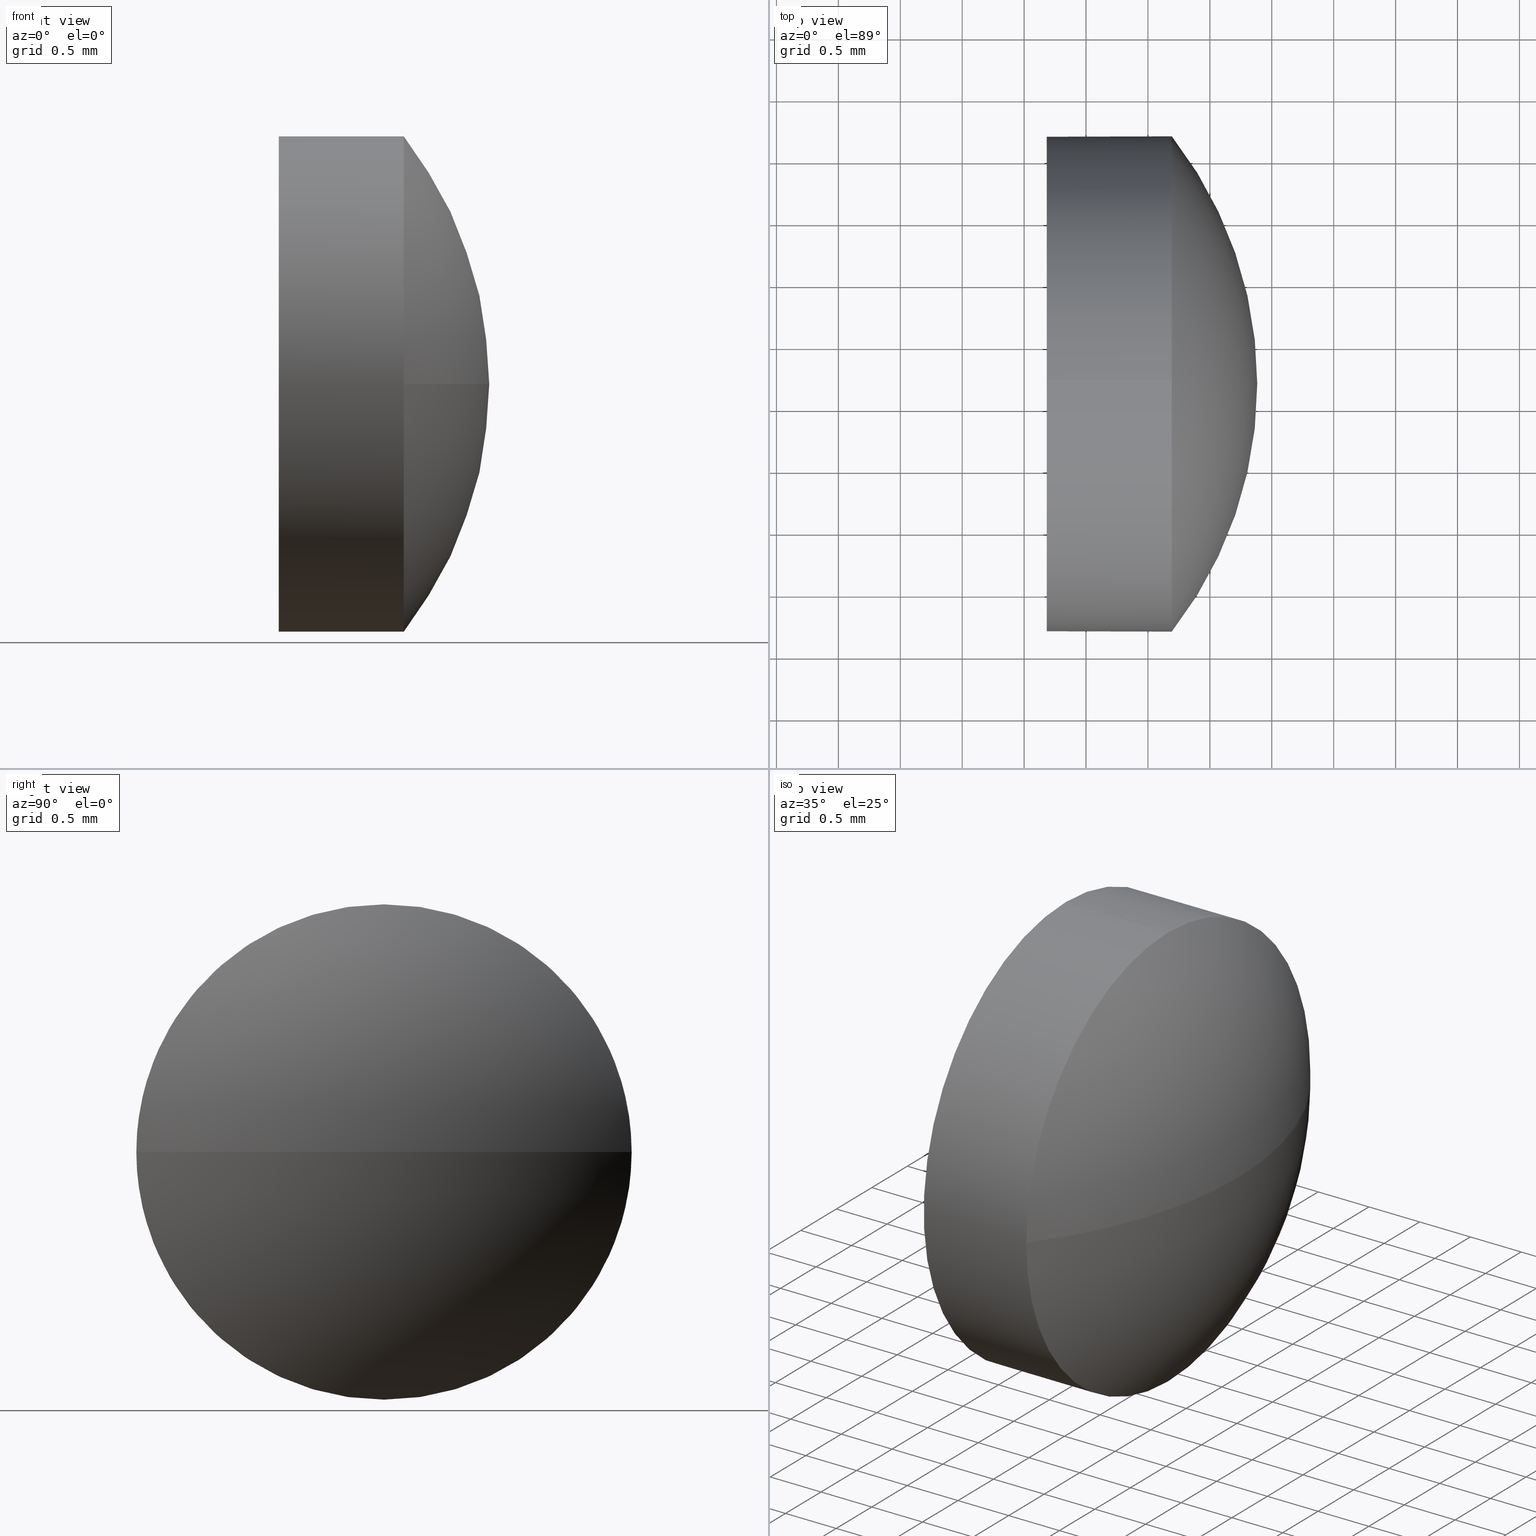
[diagram: canonical four-view strip — front | top / right | iso, engineering-drawing reading convention]
A machine part, canonical four-view strip (front | top / right | iso — engineering-drawing reading convention). The complete STEP part file that produces these views, byte-faithful:
ISO-10303-21;
HEADER;
FILE_DESCRIPTION (( 'STEP AP214' ),
    '1' );
FILE_NAME ('100089.STEP',
    '2019-05-13T03:08:41',
    ( '' ),
    ( '' ),
    'SwSTEP 2.0',
    'SolidWorks 2016',
    '' );
FILE_SCHEMA (( 'AUTOMOTIVE_DESIGN' ));
ENDSEC;

DATA;
#1 = LINE ( 'NONE', #116, #63 ) ;
#2 = SPHERICAL_SURFACE ( 'NONE', #164, 3.243550724637656900 ) ;
#3 = ORIENTED_EDGE ( 'NONE', *, *, #127, .F. ) ;
#4 = AXIS2_PLACEMENT_3D ( 'NONE', #95, #137, #51 ) ;
#5 = CARTESIAN_POINT ( 'NONE',  ( 388.6927272250636600, 21.68539423568211400, 1.999999999999998200 ) ) ;
#6 = CIRCLE ( 'NONE', #174, 1.999999999999998200 ) ;
#7 = CARTESIAN_POINT ( 'NONE',  ( 388.6927272250636600, 19.68539423568211400, 0.0000000000000000000 ) ) ;
#8 = DIRECTION ( 'NONE',  ( 0.0000000000000000000, -1.000000000000000000, 0.0000000000000000000 ) ) ;
#9 =( LENGTH_UNIT ( ) NAMED_UNIT ( * ) SI_UNIT ( .MILLI., .METRE. ) );
#10 = ORIENTED_EDGE ( 'NONE', *, *, #101, .T. ) ;
#11 = DIRECTION ( 'NONE',  ( -1.000000000000000000, -0.0000000000000000000, -0.0000000000000000000 ) ) ;
#12 = DIRECTION ( 'NONE',  ( -1.000000000000000000, -0.0000000000000000000, -0.0000000000000000000 ) ) ;
#13 = FILL_AREA_STYLE ('',( #39 ) ) ;
#14 = MECHANICAL_DESIGN_GEOMETRIC_PRESENTATION_REPRESENTATION (  '', ( #159 ), #38 ) ;
#15 = AXIS2_PLACEMENT_3D ( 'NONE', #49, #17, #131 ) ;
#16 = PRESENTATION_STYLE_ASSIGNMENT (( #93 ) ) ;
#17 = DIRECTION ( 'NONE',  ( -1.000000000000000000, -0.0000000000000000000, -0.0000000000000000000 ) ) ;
#18 = AXIS2_PLACEMENT_3D ( 'NONE', #65, #11, #124 ) ;
#19 = DIRECTION ( 'NONE',  ( 0.0000000000000000000, 0.0000000000000000000, -1.000000000000000000 ) ) ;
#20 = PRODUCT_RELATED_PRODUCT_CATEGORY ( 'part', '', ( #176 ) ) ;
#21 = ORIENTED_EDGE ( 'NONE', *, *, #138, .T. ) ;
#22 =( NAMED_UNIT ( * ) SI_UNIT ( $, .STERADIAN. ) SOLID_ANGLE_UNIT ( ) );
#23 = VERTEX_POINT ( 'NONE', #126 ) ;
#24 = FACE_OUTER_BOUND ( 'NONE', #73, .T. ) ;
#25 = SURFACE_SIDE_STYLE ('',( #59 ) ) ;
#26 = FACE_OUTER_BOUND ( 'NONE', #42, .T. ) ;
#27 = AXIS2_PLACEMENT_3D ( 'NONE', #33, #45, #166 ) ;
#28 = VECTOR ( 'NONE', #60, 1000.000000000000000 ) ;
#29 = STYLED_ITEM ( 'NONE', ( #141 ), #173 ) ;
#30 = ORIENTED_EDGE ( 'NONE', *, *, #114, .T. ) ;
#31 = CYLINDRICAL_SURFACE ( 'NONE', #185, 1.999999999999998200 ) ;
#32 = ORIENTED_EDGE ( 'NONE', *, *, #148, .F. ) ;
#33 = CARTESIAN_POINT ( 'NONE',  ( 387.6827272250636700, 21.68539423568211400, 0.0000000000000000000 ) ) ;
#34 = DIRECTION ( 'NONE',  ( -1.000000000000000000, -0.0000000000000000000, -0.0000000000000000000 ) ) ;
#35 = ORIENTED_EDGE ( 'NONE', *, *, #64, .F. ) ;
#36 = DIRECTION ( 'NONE',  ( 0.0000000000000000000, 0.0000000000000000000, 1.000000000000000000 ) ) ;
#37 = FILL_AREA_STYLE_COLOUR ( '', #56 ) ;
#38 =( GEOMETRIC_REPRESENTATION_CONTEXT ( 3 ) GLOBAL_UNCERTAINTY_ASSIGNED_CONTEXT ( ( #85 ) ) GLOBAL_UNIT_ASSIGNED_CONTEXT ( ( #119, #133, #156 ) ) REPRESENTATION_CONTEXT ( 'NONE', 'WORKASPACE' ) );
#39 = FILL_AREA_STYLE_COLOUR ( '', #69 ) ;
#40 = AXIS2_PLACEMENT_3D ( 'NONE', #61, #19, #76 ) ;
#41 = DIRECTION ( 'NONE',  ( 0.0000000000000000000, 0.0000000000000000000, 1.000000000000000000 ) ) ;
#42 = EDGE_LOOP ( 'NONE', ( #30, #77 ) ) ;
#43 = APPLICATION_PROTOCOL_DEFINITION ( 'draft international standard', 'automotive_design', 1998, #168 ) ;
#44 = CIRCLE ( 'NONE', #15, 1.999999999999998200 ) ;
#45 = DIRECTION ( 'NONE',  ( 1.000000000000000000, 0.0000000000000000000, 0.0000000000000000000 ) ) ;
#46 = PRESENTATION_LAYER_ASSIGNMENT (  '', '', ( #159 ) ) ;
#47 = ADVANCED_FACE ( 'NONE', ( #129 ), #72, .T. ) ;
#48 = ORIENTED_EDGE ( 'NONE', *, *, #114, .F. ) ;
#49 = CARTESIAN_POINT ( 'NONE',  ( 387.6827272250636700, 21.68539423568211400, 0.0000000000000000000 ) ) ;
#50 =( NAMED_UNIT ( * ) PLANE_ANGLE_UNIT ( ) SI_UNIT ( $, .RADIAN. ) );
#51 = DIRECTION ( 'NONE',  ( 0.0000000000000000000, -1.000000000000000000, -1.224646799147353200E-016 ) ) ;
#52 = EDGE_LOOP ( 'NONE', ( #53, #86, #35, #32 ) ) ;
#53 = ORIENTED_EDGE ( 'NONE', *, *, #138, .F. ) ;
#54 = DIRECTION ( 'NONE',  ( -1.000000000000000000, -0.0000000000000000000, -0.0000000000000000000 ) ) ;
#55 = CARTESIAN_POINT ( 'NONE',  ( 387.3354766660683600, 21.68539423568211400, 0.0000000000000000000 ) ) ;
#56 = COLOUR_RGB ( '',1.000000000000000000, 1.000000000000000000, 1.000000000000000000 ) ;
#57 = CYLINDRICAL_SURFACE ( 'NONE', #158, 1.999999999999998200 ) ;
#58 = PRESENTATION_LAYER_ASSIGNMENT (  '', '', ( #29 ) ) ;
#59 = SURFACE_STYLE_FILL_AREA ( #68 ) ;
#60 = DIRECTION ( 'NONE',  ( -1.000000000000000000, -0.0000000000000000000, -0.0000000000000000000 ) ) ;
#61 = CARTESIAN_POINT ( 'NONE',  ( 386.1391765004260000, 21.68539423568212100, 0.0000000000000000000 ) ) ;
#62 = PRODUCT_DEFINITION ( 'δ֪', '', #70, #90 ) ;
#63 = VECTOR ( 'NONE', #181, 1000.000000000000000 ) ;
#64 = EDGE_CURVE ( 'NONE', #107, #125, #136, .T. ) ;
#65 = CARTESIAN_POINT ( 'NONE',  ( 387.6827272250636700, 21.68539423568211400, 0.0000000000000000000 ) ) ;
#66 = ORIENTED_EDGE ( 'NONE', *, *, #122, .F. ) ;
#67 = CARTESIAN_POINT ( 'NONE',  ( 386.1391765004260000, 21.68539423568212100, 0.0000000000000000000 ) ) ;
#68 = FILL_AREA_STYLE ('',( #37 ) ) ;
#69 = COLOUR_RGB ( '',1.000000000000000000, 1.000000000000000000, 1.000000000000000000 ) ;
#70 = PRODUCT_DEFINITION_FORMATION_WITH_SPECIFIED_SOURCE ( '�κ�', '', #176, .NOT_KNOWN. ) ;
#71 = UNCERTAINTY_MEASURE_WITH_UNIT (LENGTH_MEASURE( 1.000000000000000100E-005 ), #155, 'distance_accuracy_value', 'NONE');
#72 = SPHERICAL_SURFACE ( 'NONE', #170, 3.243550724637656900 ) ;
#73 = EDGE_LOOP ( 'NONE', ( #154, #10, #48, #3, #102 ) ) ;
#74 = LINE ( 'NONE', #103, #28 ) ;
#75 = MECHANICAL_DESIGN_GEOMETRIC_PRESENTATION_REPRESENTATION (  '', ( #29 ), #94 ) ;
#76 = DIRECTION ( 'NONE',  ( -1.000000000000000000, 0.0000000000000000000, 0.0000000000000000000 ) ) ;
#77 = ORIENTED_EDGE ( 'NONE', *, *, #142, .T. ) ;
#78 = DIRECTION ( 'NONE',  ( 1.000000000000000000, 0.0000000000000000000, 0.0000000000000000000 ) ) ;
#79 = SURFACE_STYLE_USAGE ( .BOTH. , #152 ) ;
#80 = DIRECTION ( 'NONE',  ( 0.0000000000000000000, 0.0000000000000000000, 1.000000000000000000 ) ) ;
#81 = CIRCLE ( 'NONE', #134, 1.999999999999998200 ) ;
#82 = ADVANCED_FACE ( 'NONE', ( #100 ), #31, .T. ) ;
#83 = AXIS2_PLACEMENT_3D ( 'NONE', #139, #80, #78 ) ;
#84 = DIRECTION ( 'NONE',  ( 0.0000000000000000000, 0.0000000000000000000, 1.000000000000000000 ) ) ;
#85 = UNCERTAINTY_MEASURE_WITH_UNIT (LENGTH_MEASURE( 1.000000000000000100E-005 ), #119, 'distance_accuracy_value', 'NONE');
#86 = ORIENTED_EDGE ( 'NONE', *, *, #122, .T. ) ;
#87 =( GEOMETRIC_REPRESENTATION_CONTEXT ( 3 ) GLOBAL_UNCERTAINTY_ASSIGNED_CONTEXT ( ( #71 ) ) GLOBAL_UNIT_ASSIGNED_CONTEXT ( ( #155, #183, #22 ) ) REPRESENTATION_CONTEXT ( 'NONE', 'WORKASPACE' ) );
#88 = ORIENTED_EDGE ( 'NONE', *, *, #127, .T. ) ;
#89 = UNCERTAINTY_MEASURE_WITH_UNIT (LENGTH_MEASURE( 1.000000000000000100E-005 ), #9, 'distance_accuracy_value', 'NONE');
#90 = PRODUCT_DEFINITION_CONTEXT ( 'detailed design', #172, 'design' ) ;
#91 = DIRECTION ( 'NONE',  ( 0.0000000000000000000, 0.0000000000000000000, 1.000000000000000000 ) ) ;
#92 = CARTESIAN_POINT ( 'NONE',  ( 387.3354766660683600, 21.68539423568211400, 0.0000000000000000000 ) ) ;
#93 = SURFACE_STYLE_USAGE ( .BOTH. , #25 ) ;
#94 =( GEOMETRIC_REPRESENTATION_CONTEXT ( 3 ) GLOBAL_UNCERTAINTY_ASSIGNED_CONTEXT ( ( #89 ) ) GLOBAL_UNIT_ASSIGNED_CONTEXT ( ( #9, #50, #111 ) ) REPRESENTATION_CONTEXT ( 'NONE', 'WORKASPACE' ) );
#95 = CARTESIAN_POINT ( 'NONE',  ( 386.1391765004260000, 21.68539423568212100, 0.0000000000000000000 ) ) ;
#96 = CARTESIAN_POINT ( 'NONE',  ( 388.6927272250636600, 21.68539423568211400, 0.0000000000000000000 ) ) ;
#97 = EDGE_CURVE ( 'NONE', #125, #99, #81, .T. ) ;
#98 = DIRECTION ( 'NONE',  ( -1.000000000000000000, -0.0000000000000000000, -0.0000000000000000000 ) ) ;
#99 = VERTEX_POINT ( 'NONE', #5 ) ;
#100 = FACE_OUTER_BOUND ( 'NONE', #145, .T. ) ;
#101 = EDGE_CURVE ( 'NONE', #107, #162, #1, .T. ) ;
#102 = ORIENTED_EDGE ( 'NONE', *, *, #160, .T. ) ;
#103 = CARTESIAN_POINT ( 'NONE',  ( 387.3354766660683600, 21.68539423568211400, 1.999999999999998200 ) ) ;
#104 = CARTESIAN_POINT ( 'NONE',  ( 386.1391765004260000, 21.68539423568212100, 0.0000000000000000000 ) ) ;
#105 = DIRECTION ( 'NONE',  ( 0.0000000000000000000, 0.0000000000000000000, 1.000000000000000000 ) ) ;
#106 = CARTESIAN_POINT ( 'NONE',  ( 388.6927272250636600, 21.68539423568211400, 0.0000000000000000000 ) ) ;
#107 = VERTEX_POINT ( 'NONE', #165 ) ;
#108 = PLANE ( 'NONE',  #27 ) ;
#109 = CARTESIAN_POINT ( 'NONE',  ( 387.6827272250636700, 21.68539423568211400, -1.999999999999998200 ) ) ;
#110 = ADVANCED_FACE ( 'NONE', ( #26 ), #108, .F. ) ;
#111 =( NAMED_UNIT ( * ) SI_UNIT ( $, .STERADIAN. ) SOLID_ANGLE_UNIT ( ) );
#112 = APPLICATION_PROTOCOL_DEFINITION ( 'draft international standard', 'automotive_design', 1998, #172 ) ;
#113 = CIRCLE ( 'NONE', #40, 3.243550724637667100 ) ;
#114 = EDGE_CURVE ( 'NONE', #23, #162, #44, .T. ) ;
#115 = CLOSED_SHELL ( 'NONE', ( #177, #123, #47, #82, #110 ) ) ;
#116 = CARTESIAN_POINT ( 'NONE',  ( 387.3354766660683600, 21.68539423568211400, -1.999999999999998200 ) ) ;
#117 = CIRCLE ( 'NONE', #4, 3.243550724637656900 ) ;
#118 = DIRECTION ( 'NONE',  ( 0.0000000000000000000, 0.0000000000000000000, 1.000000000000000000 ) ) ;
#119 =( LENGTH_UNIT ( ) NAMED_UNIT ( * ) SI_UNIT ( .MILLI., .METRE. ) );
#120 = ORIENTED_EDGE ( 'NONE', *, *, #101, .F. ) ;
#121 = ADVANCED_BREP_SHAPE_REPRESENTATION ( '100089', ( #173, #83 ), #87 ) ;
#122 = EDGE_CURVE ( 'NONE', #151, #125, #113, .T. ) ;
#123 = ADVANCED_FACE ( 'NONE', ( #143 ), #2, .T. ) ;
#124 = DIRECTION ( 'NONE',  ( 0.0000000000000000000, 0.0000000000000000000, 1.000000000000000000 ) ) ;
#125 = VERTEX_POINT ( 'NONE', #7 ) ;
#126 = CARTESIAN_POINT ( 'NONE',  ( 387.6827272250636700, 21.68539423568211400, 1.999999999999998200 ) ) ;
#127 = EDGE_CURVE ( 'NONE', #99, #23, #74, .T. ) ;
#128 = ORIENTED_EDGE ( 'NONE', *, *, #97, .T. ) ;
#129 = FACE_OUTER_BOUND ( 'NONE', #52, .T. ) ;
#130 = PRODUCT_DEFINITION_SHAPE ( 'NONE', 'NONE',  #62 ) ;
#131 = DIRECTION ( 'NONE',  ( 0.0000000000000000000, 0.0000000000000000000, 1.000000000000000000 ) ) ;
#132 = CIRCLE ( 'NONE', #18, 1.999999999999998200 ) ;
#133 =( NAMED_UNIT ( * ) PLANE_ANGLE_UNIT ( ) SI_UNIT ( $, .RADIAN. ) );
#134 = AXIS2_PLACEMENT_3D ( 'NONE', #179, #147, #105 ) ;
#135 = SHAPE_DEFINITION_REPRESENTATION ( #130, #121 ) ;
#136 = CIRCLE ( 'NONE', #178, 1.999999999999998200 ) ;
#137 = DIRECTION ( 'NONE',  ( 0.0000000000000000000, -1.224646799147353200E-016, 1.000000000000000000 ) ) ;
#138 = EDGE_CURVE ( 'NONE', #151, #144, #117, .T. ) ;
#139 = CARTESIAN_POINT ( 'NONE',  ( 0.0000000000000000000, 0.0000000000000000000, 0.0000000000000000000 ) ) ;
#140 = DIRECTION ( 'NONE',  ( 0.0000000000000000000, -1.000000000000000000, 0.0000000000000000000 ) ) ;
#141 = PRESENTATION_STYLE_ASSIGNMENT (( #79 ) ) ;
#142 = EDGE_CURVE ( 'NONE', #162, #23, #132, .T. ) ;
#143 = FACE_OUTER_BOUND ( 'NONE', #169, .T. ) ;
#144 = VERTEX_POINT ( 'NONE', #146 ) ;
#145 = EDGE_LOOP ( 'NONE', ( #120, #163, #128, #88, #186 ) ) ;
#146 = CARTESIAN_POINT ( 'NONE',  ( 388.6927272250636600, 23.68539423568211800, 2.449293598294706900E-016 ) ) ;
#147 = DIRECTION ( 'NONE',  ( -1.000000000000000000, -0.0000000000000000000, -0.0000000000000000000 ) ) ;
#148 = EDGE_CURVE ( 'NONE', #144, #107, #184, .T. ) ;
#149 = DIRECTION ( 'NONE',  ( 0.0000000000000000000, 0.0000000000000000000, 1.000000000000000000 ) ) ;
#150 = CARTESIAN_POINT ( 'NONE',  ( 389.3827272250636600, 21.68539423568212100, 0.0000000000000000000 ) ) ;
#151 = VERTEX_POINT ( 'NONE', #150 ) ;
#152 = SURFACE_SIDE_STYLE ('',( #182 ) ) ;
#153 = DIRECTION ( 'NONE',  ( -1.000000000000000000, -0.0000000000000000000, -0.0000000000000000000 ) ) ;
#154 = ORIENTED_EDGE ( 'NONE', *, *, #148, .T. ) ;
#155 =( LENGTH_UNIT ( ) NAMED_UNIT ( * ) SI_UNIT ( .MILLI., .METRE. ) );
#156 =( NAMED_UNIT ( * ) SI_UNIT ( $, .STERADIAN. ) SOLID_ANGLE_UNIT ( ) );
#157 = CARTESIAN_POINT ( 'NONE',  ( 388.6927272250636600, 21.68539423568211400, 0.0000000000000000000 ) ) ;
#158 = AXIS2_PLACEMENT_3D ( 'NONE', #92, #34, #118 ) ;
#159 = STYLED_ITEM ( 'NONE', ( #16 ), #121 ) ;
#160 = EDGE_CURVE ( 'NONE', #99, #144, #6, .T. ) ;
#161 = ORIENTED_EDGE ( 'NONE', *, *, #160, .F. ) ;
#162 = VERTEX_POINT ( 'NONE', #109 ) ;
#163 = ORIENTED_EDGE ( 'NONE', *, *, #64, .T. ) ;
#164 = AXIS2_PLACEMENT_3D ( 'NONE', #104, #149, #8 ) ;
#165 = CARTESIAN_POINT ( 'NONE',  ( 388.6927272250636600, 21.68539423568211400, -1.999999999999998200 ) ) ;
#166 = DIRECTION ( 'NONE',  ( 0.0000000000000000000, 0.0000000000000000000, -1.000000000000000000 ) ) ;
#167 = ORIENTED_EDGE ( 'NONE', *, *, #97, .F. ) ;
#168 = APPLICATION_CONTEXT ( 'automotive_design' ) ;
#169 = EDGE_LOOP ( 'NONE', ( #66, #21, #161, #167 ) ) ;
#170 = AXIS2_PLACEMENT_3D ( 'NONE', #67, #41, #140 ) ;
#171 = DIRECTION ( 'NONE',  ( 0.0000000000000000000, 0.0000000000000000000, 1.000000000000000000 ) ) ;
#172 = APPLICATION_CONTEXT ( 'automotive_design' ) ;
#173 = MANIFOLD_SOLID_BREP ( '��ת1', #115 ) ;
#174 = AXIS2_PLACEMENT_3D ( 'NONE', #106, #12, #171 ) ;
#175 = AXIS2_PLACEMENT_3D ( 'NONE', #96, #153, #36 ) ;
#176 = PRODUCT ( '100089', '100089', '', ( #180 ) ) ;
#177 = ADVANCED_FACE ( 'NONE', ( #24 ), #57, .T. ) ;
#178 = AXIS2_PLACEMENT_3D ( 'NONE', #157, #54, #91 ) ;
#179 = CARTESIAN_POINT ( 'NONE',  ( 388.6927272250636600, 21.68539423568211400, 0.0000000000000000000 ) ) ;
#180 = PRODUCT_CONTEXT ( 'NONE', #168, 'mechanical' ) ;
#181 = DIRECTION ( 'NONE',  ( -1.000000000000000000, -0.0000000000000000000, -0.0000000000000000000 ) ) ;
#182 = SURFACE_STYLE_FILL_AREA ( #13 ) ;
#183 =( NAMED_UNIT ( * ) PLANE_ANGLE_UNIT ( ) SI_UNIT ( $, .RADIAN. ) );
#184 = CIRCLE ( 'NONE', #175, 1.999999999999998200 ) ;
#185 = AXIS2_PLACEMENT_3D ( 'NONE', #55, #98, #84 ) ;
#186 = ORIENTED_EDGE ( 'NONE', *, *, #142, .F. ) ;
ENDSEC;
END-ISO-10303-21;
